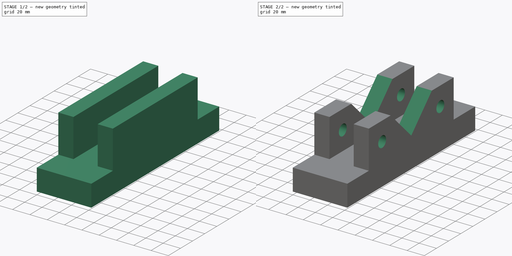
[diagram: build sequence overview — one tinted view per stage of 2, left to right]
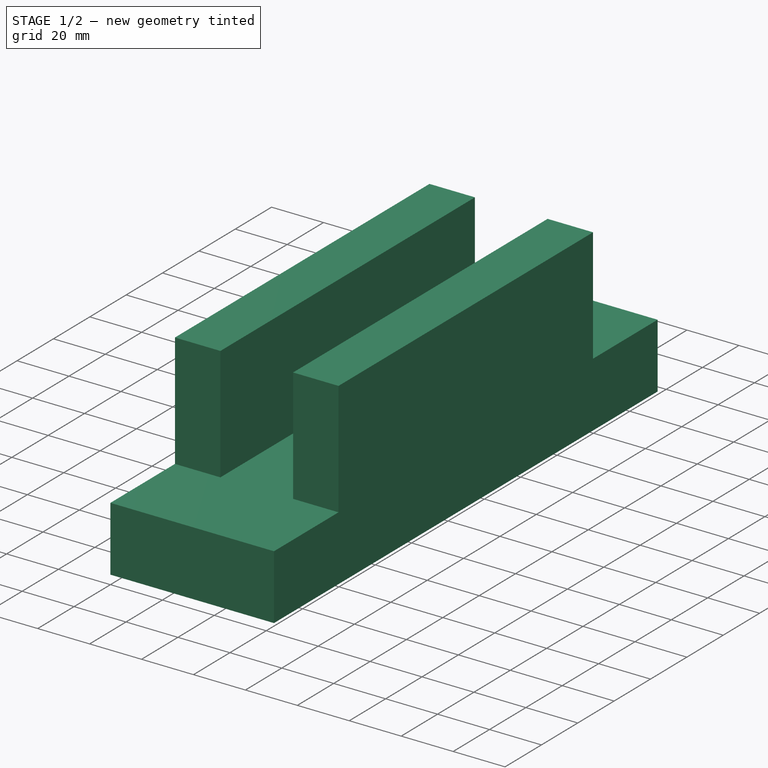
[diagram: stage 1 of 2 — iso view after this stage's code; geometry added in this stage tinted green]
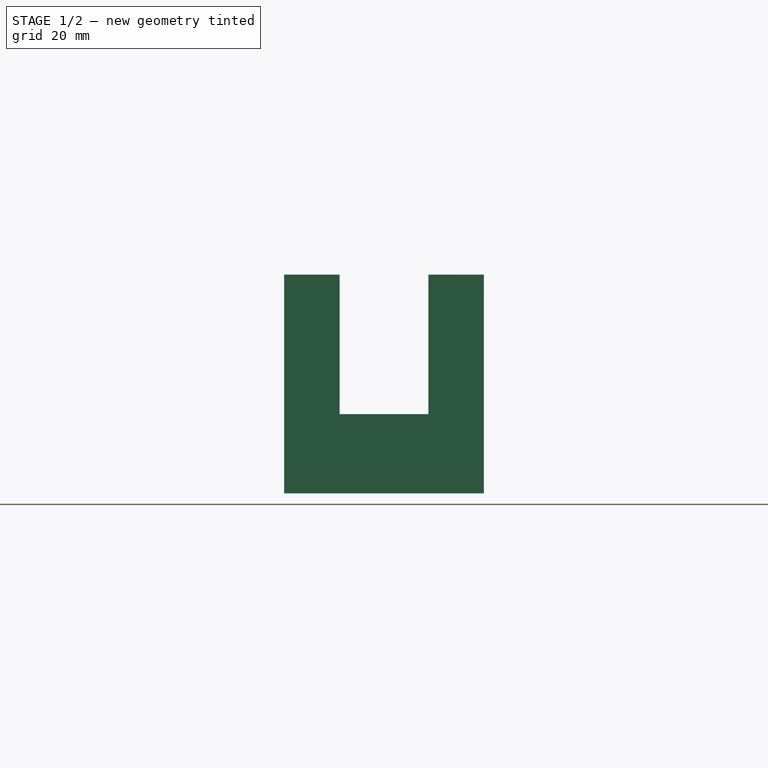
[diagram: stage 1 of 2 — front view after this stage's code; geometry added in this stage tinted green]
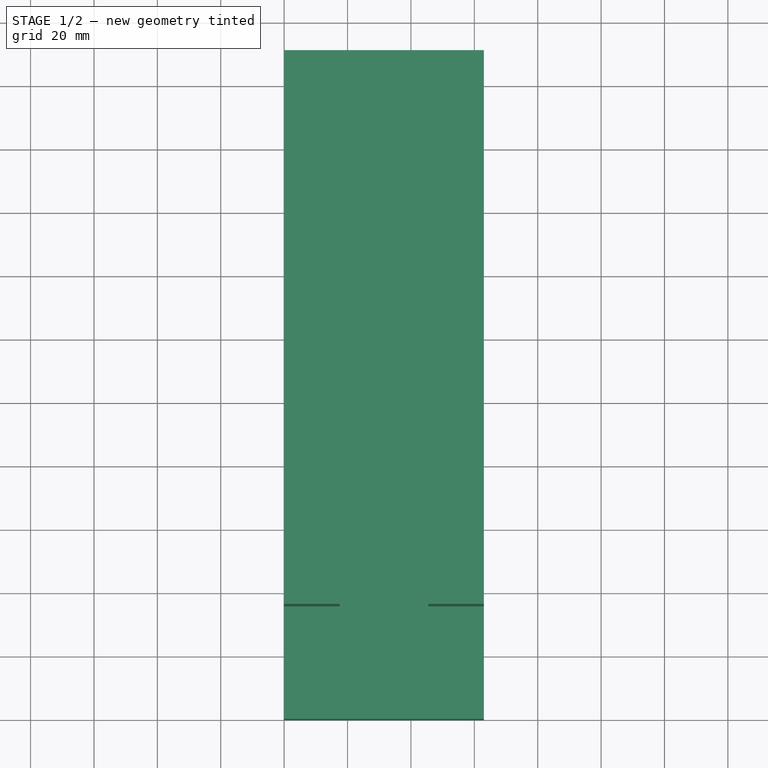
[diagram: stage 1 of 2 — top view after this stage's code; geometry added in this stage tinted green]
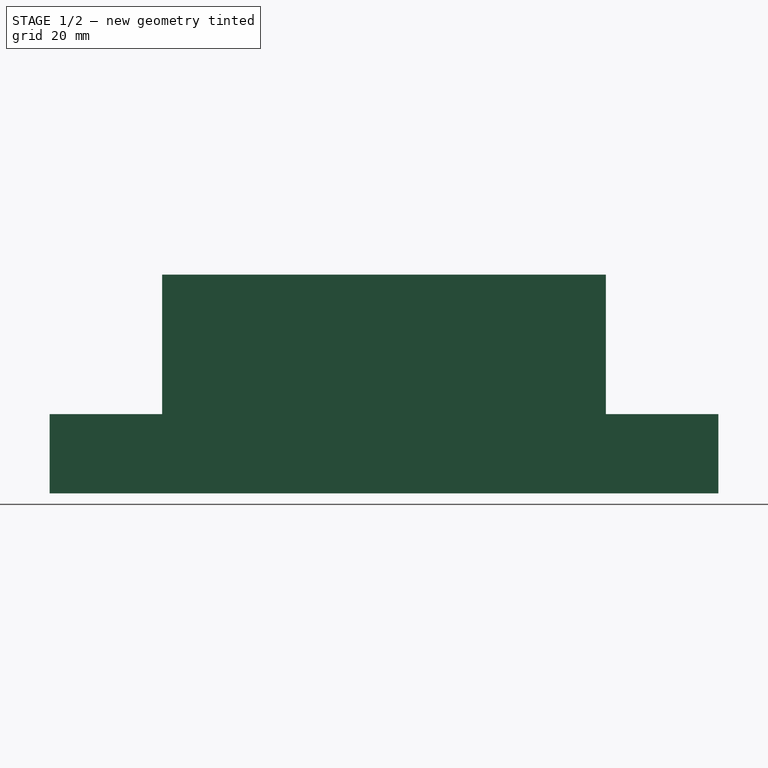
[diagram: stage 1 of 2 — right view after this stage's code; geometry added in this stage tinted green]
FCSTD DOCUMENT  (FreeCAD 0.18R4 (GitTag))
Label: part 1
License: All rights reserved
LicenseURL: http://en.wikipedia.org/wiki/All_rights_reserved
objects: Sketcher::SketchObject×4, PartDesign::Pad×2, PartDesign::Pocket×2, PartDesign::Body×1
note: 13 computed .brp shape members not serialized (recipe doc carries the construction recipe); baked Part::Feature solids carry a one-line shape summary decoded from their .brp

FEATURE [Sketcher::SketchObject] Sketch
  MapMode = 5
  Support = -> [XY_Plane]
  sketch-geometry (4):
    g0: LineSegment StartX=0 StartY=0 StartZ=0 EndX=63 EndY=0 EndZ=0
    g1: LineSegment StartX=63 StartY=0 StartZ=0 EndX=63 EndY=211 EndZ=0
    g2: LineSegment StartX=63 StartY=211 StartZ=0 EndX=0 EndY=211 EndZ=0
    g3: LineSegment StartX=0 StartY=211 StartZ=0 EndX=0 EndY=0 EndZ=0
  constraints (11):
    c: Coincident(g0,g1)
    c: Coincident(g1,g2)
    c: Coincident(g2,g3)
    c: Coincident(g3,g0)
    c: Horizontal(g0)
    c: Horizontal(g2)
    c: Vertical(g1)
    c: Vertical(g3)
    c: Coincident(g0,g-1)
    c: Distance(g0) = 63
    c: Distance(g3) = 211
FEATURE [PartDesign::Pad] Pad
  Length = 25
  Length2 = 100
  Profile = -> Sketch
  Type = 0
FEATURE [Sketcher::SketchObject] Sketch001
  MapMode = 5
  Placement = pos=(0,0,25) rot=(0,0,1;0rad)
  Support = -> [Pad]
  sketch-geometry (8):
    g0: LineSegment StartX=0 StartY=175.5 StartZ=0 EndX=17.5 EndY=175.5 EndZ=0
    g1: LineSegment StartX=17.5 StartY=175.5 StartZ=0 EndX=17.5 EndY=35.5 EndZ=0
    g2: LineSegment StartX=17.5 StartY=35.5 StartZ=0 EndX=0 EndY=35.5 EndZ=0
    g3: LineSegment StartX=0 StartY=35.5 StartZ=0 EndX=0 EndY=175.5 EndZ=0
    g4: LineSegment StartX=45.5 StartY=175.5 StartZ=0 EndX=63 EndY=175.5 EndZ=0
    g5: LineSegment StartX=63 StartY=175.5 StartZ=0 EndX=63 EndY=35.5 EndZ=0
    g6: LineSegment StartX=63 StartY=35.5 StartZ=0 EndX=45.5 EndY=35.5 EndZ=0
    g7: LineSegment StartX=45.5 StartY=35.5 StartZ=0 EndX=45.5 EndY=175.5 EndZ=0
  constraints (24):
    c: Coincident(g0,g1)
    c: Coincident(g1,g2)
    c: Coincident(g2,g3)
    c: Coincident(g3,g0)
    c: Horizontal(g0)
    c: Horizontal(g2)
    c: Vertical(g1)
    c: Vertical(g3)
    c: Coincident(g4,g5)
    c: Coincident(g5,g6)
    c: Coincident(g6,g7)
    c: Coincident(g7,g4)
    c: Horizontal(g4)
    c: Horizontal(g6)
    c: Vertical(g5)
    c: Vertical(g7)
    c: Distance(g3) = 140
    c: Distance(g7) = 140
    c: Distance(g2) = 17.5
    c: Distance(g4) = 17.5
    c: DistanceY(g-1,g2) = 35.5
    c: DistanceX(g-1,g2) = 0
    c: DistanceX(g-1,g5) = 63
    c: DistanceY(g1,g6) = 0
FEATURE [PartDesign::Pad] Pad001
  BaseFeature = -> Pad
  Length = 44
  Length2 = 100
  Profile = -> Sketch001
  Type = 0
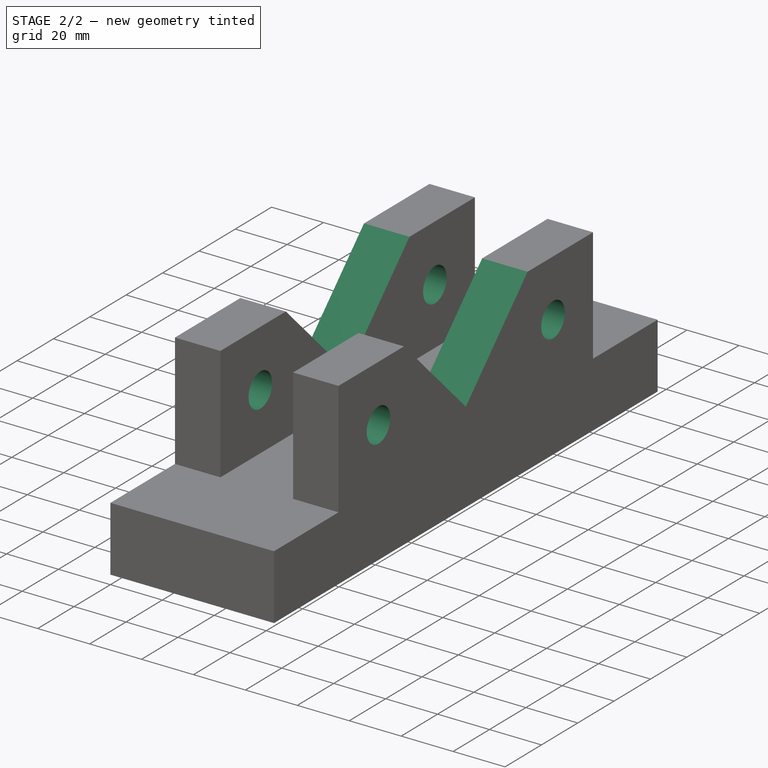
[diagram: stage 2 of 2 — iso view after this stage's code; geometry added in this stage tinted green]
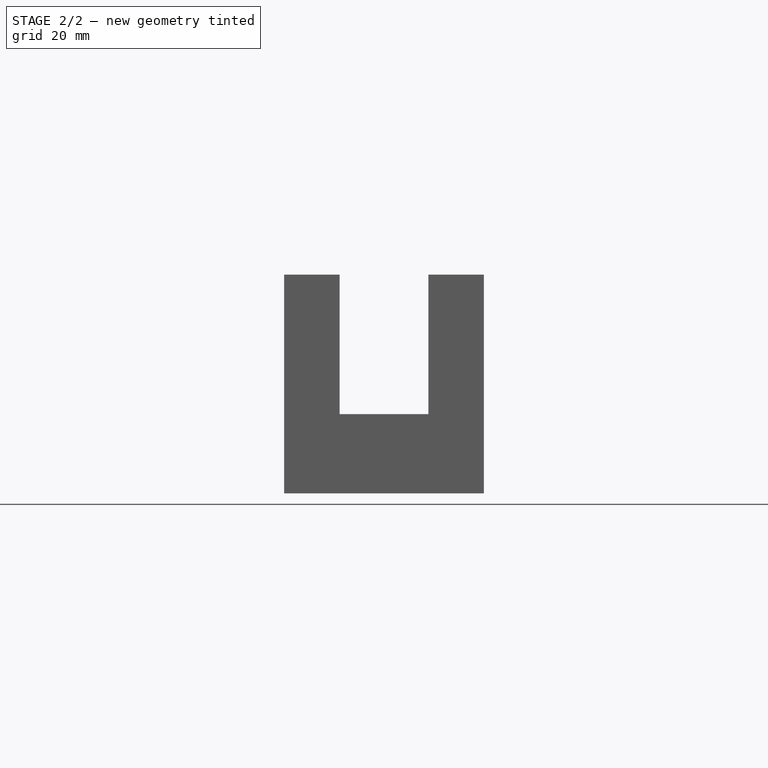
[diagram: stage 2 of 2 — front view after this stage's code; geometry added in this stage tinted green]
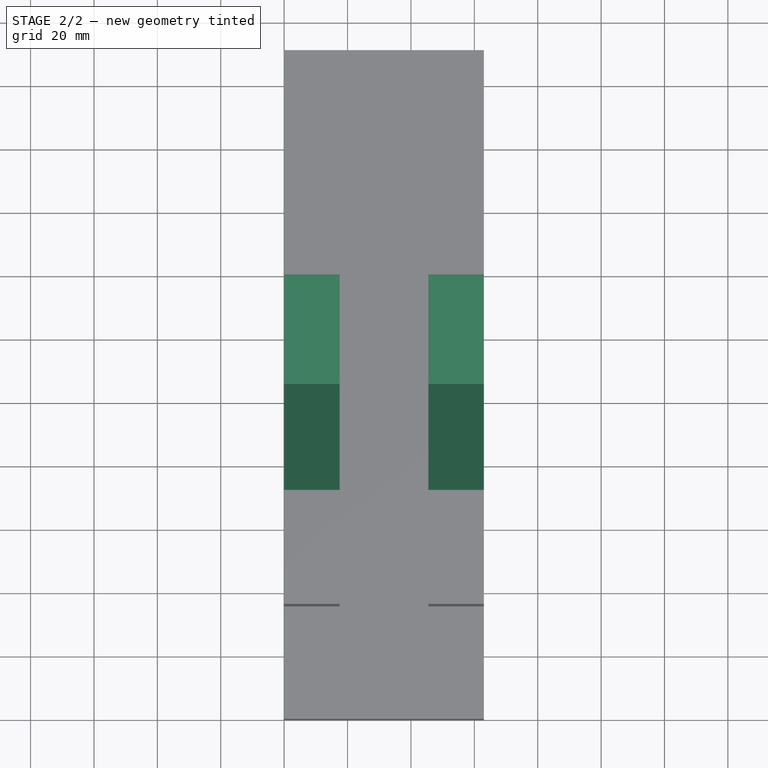
[diagram: stage 2 of 2 — top view after this stage's code; geometry added in this stage tinted green]
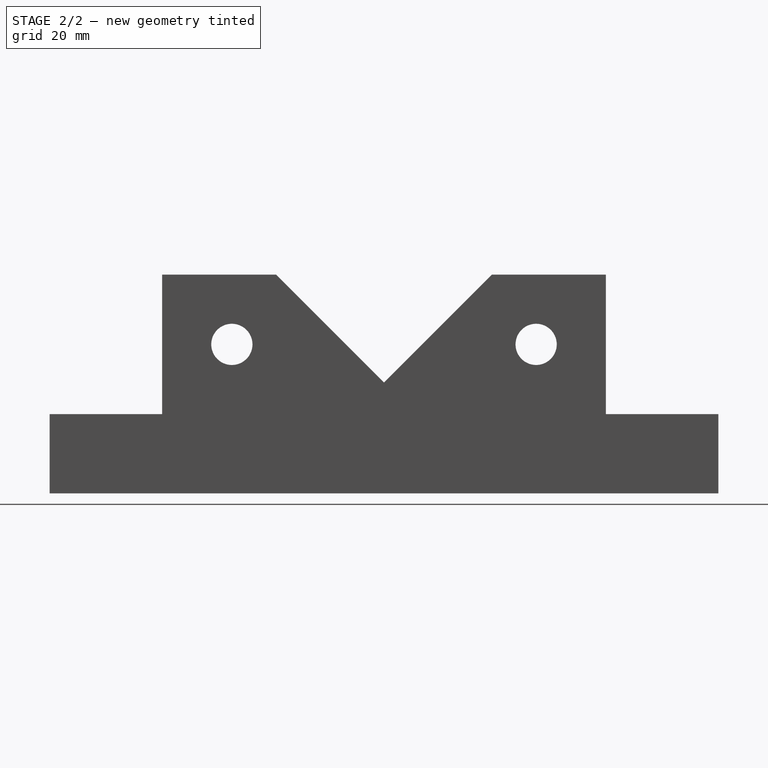
[diagram: stage 2 of 2 — right view after this stage's code; geometry added in this stage tinted green]
FEATURE [Sketcher::SketchObject] Sketch002
  ExternalGeometry = -> [Pad001]
  MapMode = 5
  Placement = pos=(63,0,0) rot=(0.57735,0.57735,0.57735;2.0944rad)
  Support = -> [Pad001]
  sketch-geometry (3):
    g0: LineSegment StartX=71.5 StartY=69 StartZ=0 EndX=105.5 EndY=35 EndZ=0
    g1: LineSegment StartX=105.5 StartY=35 StartZ=0 EndX=139.5 EndY=69 EndZ=0
    g2: LineSegment StartX=139.5 StartY=69 StartZ=0 EndX=71.5 EndY=69 EndZ=0
  constraints (9):
    c: Coincident(g0,g1)
    c: Coincident(g1,g2)
    c: Coincident(g2,g0)
    c: Horizontal(g2)
    c: Angle(g1,g0) = 1.5708
    c: DistanceX(g-1,g0) = 105.5
    c: DistanceX(g-1,g0) = 71.5
    c: DistanceX(g1,g-3) = 36
    c: DistanceY(g1,g-3) = 0
FEATURE [PartDesign::Pocket] Pocket
  BaseFeature = -> Pad001
  Length = 63
  Length2 = 100
  Profile = -> Sketch002
  Type = 0
FEATURE [Sketcher::SketchObject] Sketch003
  ExternalGeometry = -> [Pocket]
  MapMode = 5
  Placement = pos=(63,0,0) rot=(0.57735,0.57735,0.57735;2.0944rad)
  Support = -> [Pocket]
  sketch-geometry (2):
    g0: Circle CenterX=57.5 CenterY=47 CenterZ=0 NormalX=0 NormalY=0 NormalZ=1 AngleXU=0 Radius=6.5
    g1: Circle CenterX=153.5 CenterY=47 CenterZ=0 NormalX=0 NormalY=0 NormalZ=1 AngleXU=0 Radius=6.5
  constraints (6):
    c: Radius(g0) = 6.5
    c: Radius(g1) = 6.5
    c: DistanceX(g-3,g0) = 22
    c: DistanceX(g1,g-4) = 22
    c: DistanceY(g0,g-3) = 22
    c: DistanceY(g1,g-4) = 22
FEATURE [PartDesign::Pocket] Pocket001
  BaseFeature = -> Pocket
  Length = 63
  Length2 = 100
  Profile = -> Sketch003
  Type = 0
FEATURE [PartDesign::Body] Body
  Group = -> [Sketch,Pad,Sketch001,Pad001,Sketch002,Pocket,Sketch003,Pocket001]
  Origin = -> Origin
  Tip = -> Pocket001
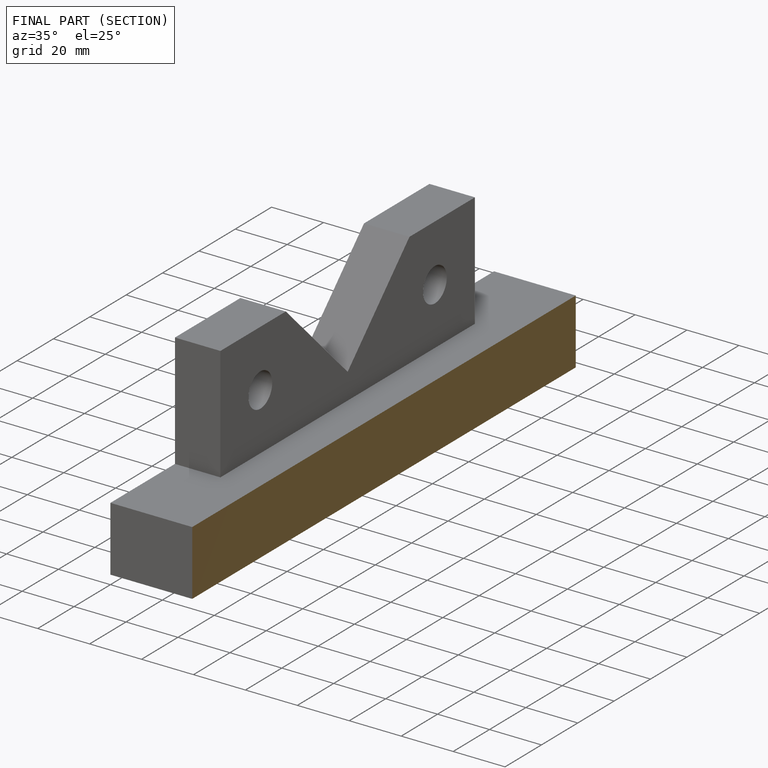
[diagram: finished part — half-section view (interior)]
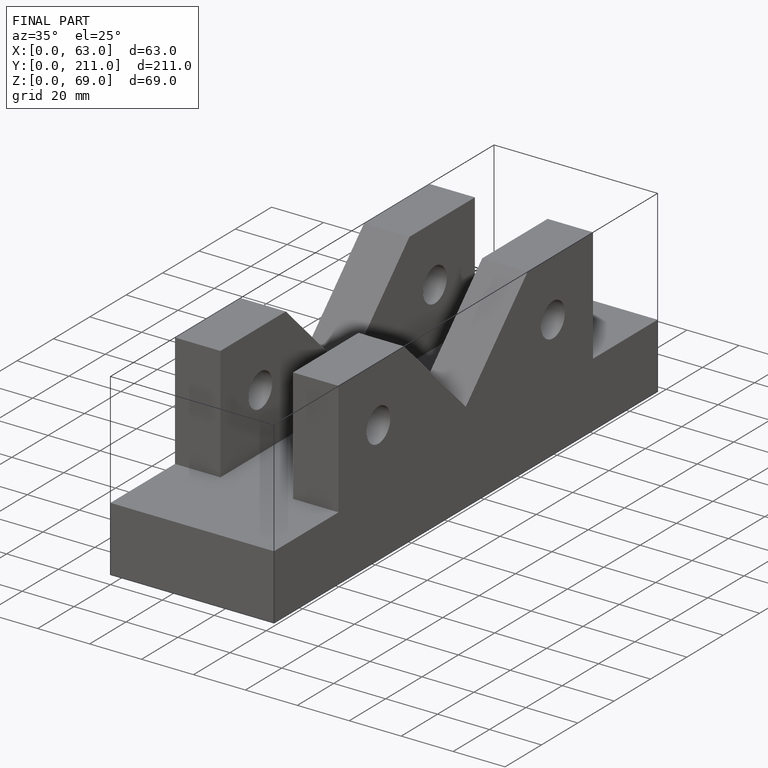
[diagram: finished part — iso view with bounding-box wireframe]
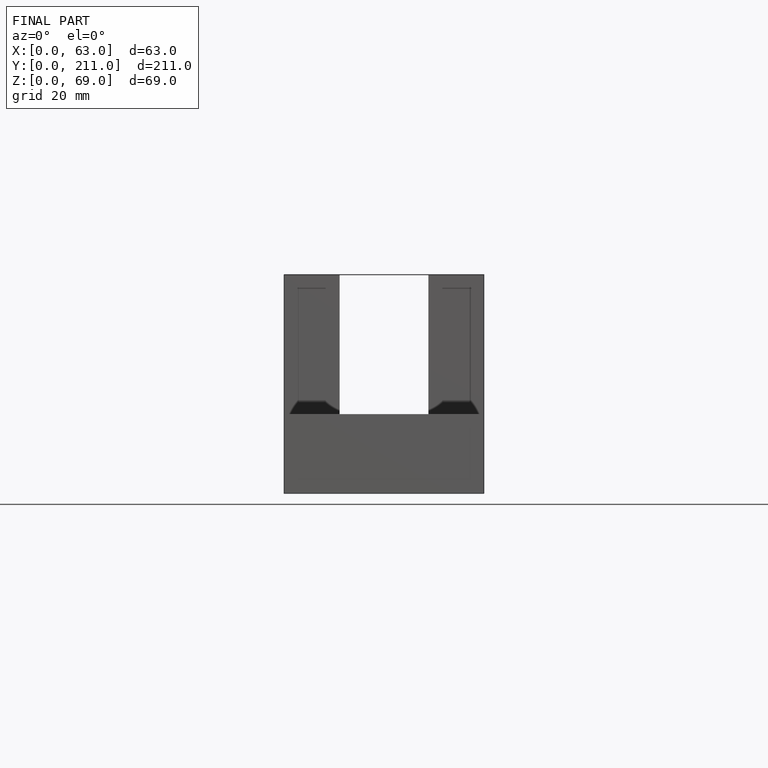
[diagram: finished part — front view with bounding-box wireframe]
